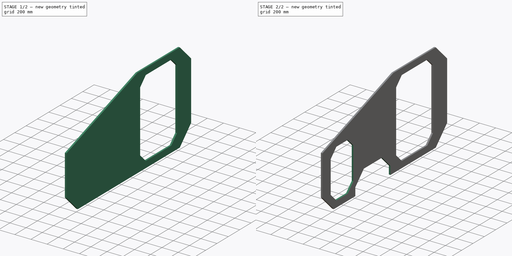
[diagram: build sequence overview — one tinted view per stage of 2, left to right]
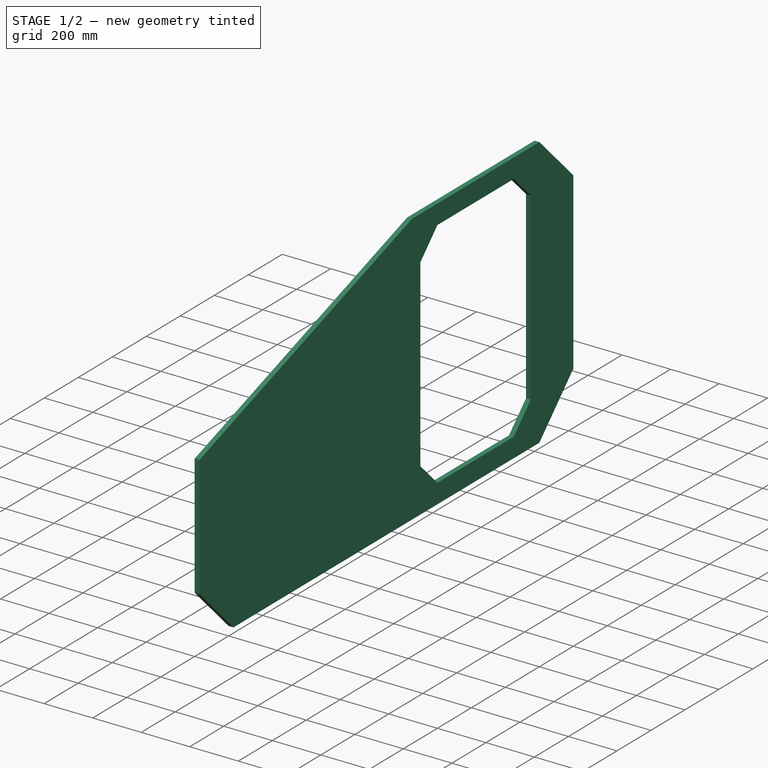
[diagram: stage 1 of 2 — iso view after this stage's code; geometry added in this stage tinted green]
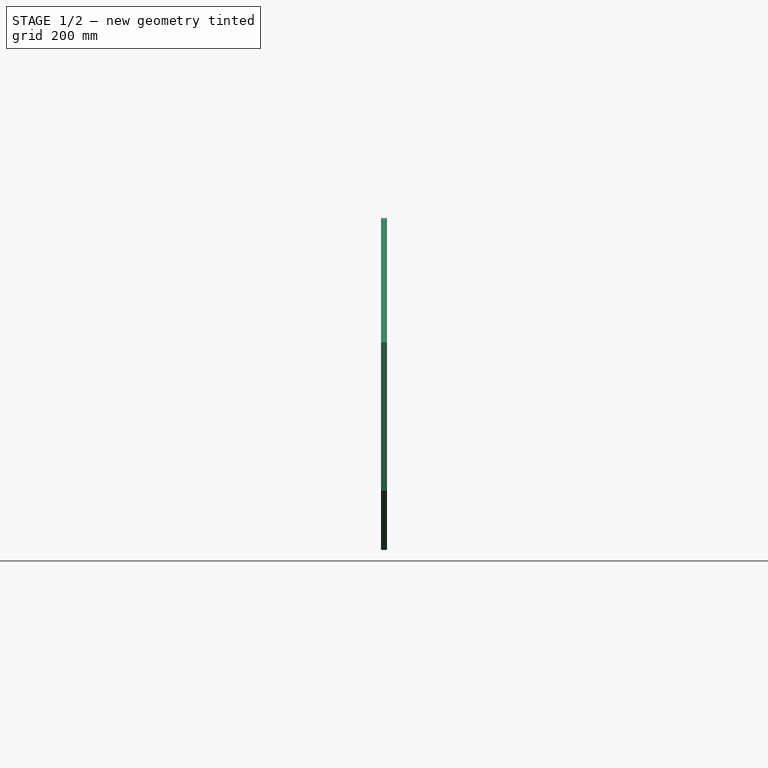
[diagram: stage 1 of 2 — front view after this stage's code; geometry added in this stage tinted green]
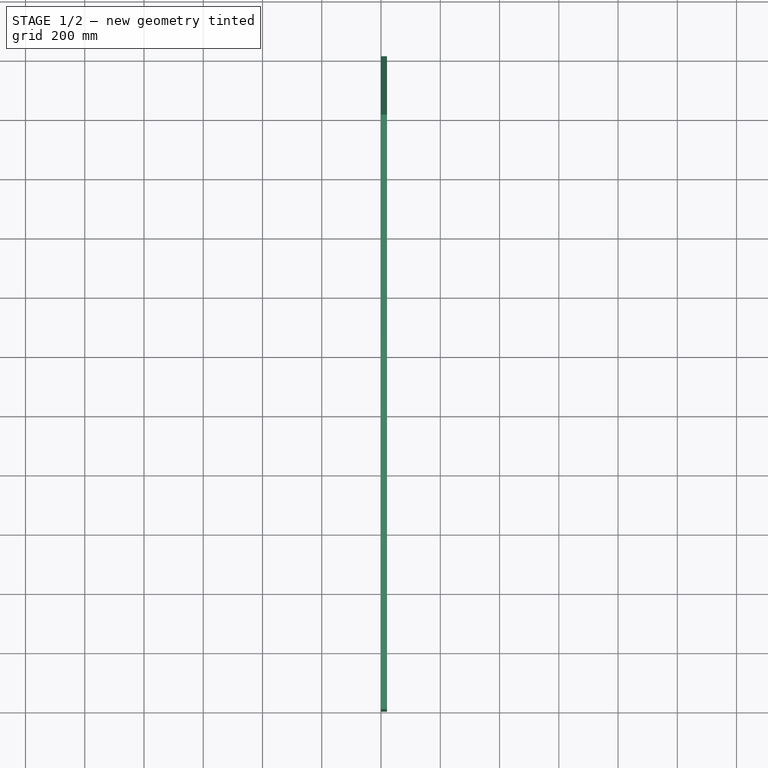
[diagram: stage 1 of 2 — top view after this stage's code; geometry added in this stage tinted green]
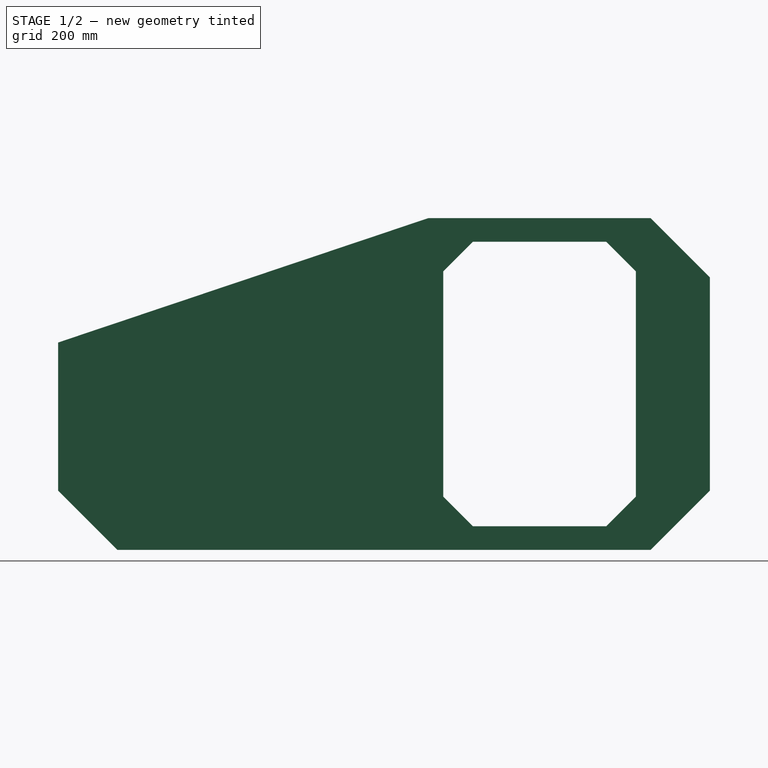
[diagram: stage 1 of 2 — right view after this stage's code; geometry added in this stage tinted green]
FCSTD DOCUMENT  (FreeCAD 0.20R29603 (Git))
Label: SeitenteilLinks
License: All rights reserved
LicenseURL: http://en.wikipedia.org/wiki/All_rights_reserved
objects: Sketcher::SketchObject×4, PartDesign::Pocket×3, PartDesign::Pad×1, PartDesign::Body×1
note: 13 computed .brp shape members not serialized (recipe doc carries the construction recipe); baked Part::Feature solids carry a one-line shape summary decoded from their .brp

FEATURE [Sketcher::SketchObject] Sketch
  FullyConstrained = true
  MapMode = 5
  Placement = pos=(0,0,0) rot=(0.57735,0.57735,0.57735;2.0944rad)
  Support = -> [YZ_Plane]
  sketch-geometry (8):
    g0: LineSegment StartX=-2000 StartY=200 StartZ=0 EndX=-2000 EndY=700 EndZ=0
    g1: LineSegment StartX=-2000 StartY=700 StartZ=0 EndX=-750 EndY=1120 EndZ=0
    g2: LineSegment StartX=-750 StartY=1120 StartZ=0 EndX=0 EndY=1120 EndZ=0
    g3: LineSegment StartX=0 StartY=1120 StartZ=0 EndX=200 EndY=920 EndZ=0
    g4: LineSegment StartX=200 StartY=920 StartZ=0 EndX=200 EndY=200 EndZ=0
    g5: LineSegment StartX=200 StartY=200 StartZ=0 EndX=0 EndY=0 EndZ=0
    g6: LineSegment StartX=0 StartY=0 StartZ=0 EndX=-1800 EndY=0 EndZ=0
    g7: LineSegment StartX=-1800 StartY=0 StartZ=0 EndX=-2000 EndY=200 EndZ=0
  constraints (23):
    c: Vertical(g0)
    c: Coincident(g0,g1)
    c: Coincident(g1,g2)
    c: Horizontal(g2)
    c: Coincident(g2,g3)
    c: Coincident(g3,g4)
    c: Vertical(g4)
    c: Coincident(g4,g5)
    c: Coincident(g5,g6)
    c: PointOnObject(g6,g-1)
    c: Coincident(g6,g7)
    c: Coincident(g7,g0)
    c: Coincident(g5,g-1)
    c: Distance(g5,g6) = 1800
    c: Distance(g5,g2) = 1120
    c: PointOnObject(g2,g-2)
    c: Distance(g5,g4) = 200
    c: Distance(g0,g6) = 700
    c: Distance(g6,g0) = 200
    c: Distance(g4,g6) = 200
    c: Distance(g3,g2) = 200
    c: Distance(g0,g6) = 200
    c: Distance(g1,g4) = 950
FEATURE [PartDesign::Pad] Pad
  Direction = (1,-2e-16,3e-16)
  Length = 20
  Length2 = 10
  Placement = pos=(0,0,0) rot=(0.57735,0.57735,0.57735;2.0944rad)
  Profile = -> Sketch
  ReferenceAxis = -> Sketch [N_Axis]
  Type = 0
FEATURE [Sketcher::SketchObject] Sketch001
  ExternalGeometry = -> [Pad]
  FullyConstrained = true
  MapMode = 5
  Placement = pos=(20,-4.4e-15,4.4e-15) rot=(0.57735,0.57735,0.57735;2.0944rad)
  Support = -> [Pad]
  sketch-geometry (8):
    g0: LineSegment StartX=-600 StartY=1040 StartZ=0 EndX=-150 EndY=1040 EndZ=0
    g1: LineSegment StartX=-150 StartY=1040 StartZ=0 EndX=-50 EndY=940 EndZ=0
    g2: LineSegment StartX=-50 StartY=940 StartZ=0 EndX=-50 EndY=180 EndZ=0
    g3: LineSegment StartX=-50 StartY=180 StartZ=0 EndX=-150 EndY=80 EndZ=0
    g4: LineSegment StartX=-150 StartY=80 StartZ=0 EndX=-600 EndY=80 EndZ=0
    g5: LineSegment StartX=-600 StartY=80 StartZ=0 EndX=-700 EndY=180 EndZ=0
    g6: LineSegment StartX=-700 StartY=180 StartZ=0 EndX=-700 EndY=940 EndZ=0
    g7: LineSegment StartX=-700 StartY=940 StartZ=0 EndX=-600 EndY=1040 EndZ=0
  constraints (24):
    c: Horizontal(g0)
    c: Coincident(g0,g1)
    c: Coincident(g1,g2)
    c: Vertical(g2)
    c: Coincident(g2,g3)
    c: Coincident(g3,g4)
    c: Horizontal(g4)
    c: Coincident(g4,g5)
    c: Coincident(g5,g6)
    c: Vertical(g6)
    c: Coincident(g6,g7)
    c: Coincident(g7,g0)
    c: Distance(g3,g-3) = 80
    c: Distance(g0,g-5) = 80
    c: Distance(g1,g0) = 100
    c: Distance(g2,g4) = 100
    c: Parallel(g5,g1)
    c: Parallel(g7,g3)
    c: Distance(g3,g2) = 100
    c: Distance(g0,g2) = 100
    c: Equal(g1,g7)
    c: Equal(g3,g5)
    c: Distance(g6,g2) = 650
    c: Distance(g5,g-4) = 900
FEATURE [PartDesign::Pocket] Pocket
  BaseFeature = -> Pad
  Direction = (-1,4e-16,-4e-16)
  Length = 20
  Length2 = 5
  Placement = pos=(0,0,0) rot=(0.57735,0.57735,0.57735;2.0944rad)
  Profile = -> Sketch001
  ReferenceAxis = -> Sketch001 [N_Axis]
  Type = 0
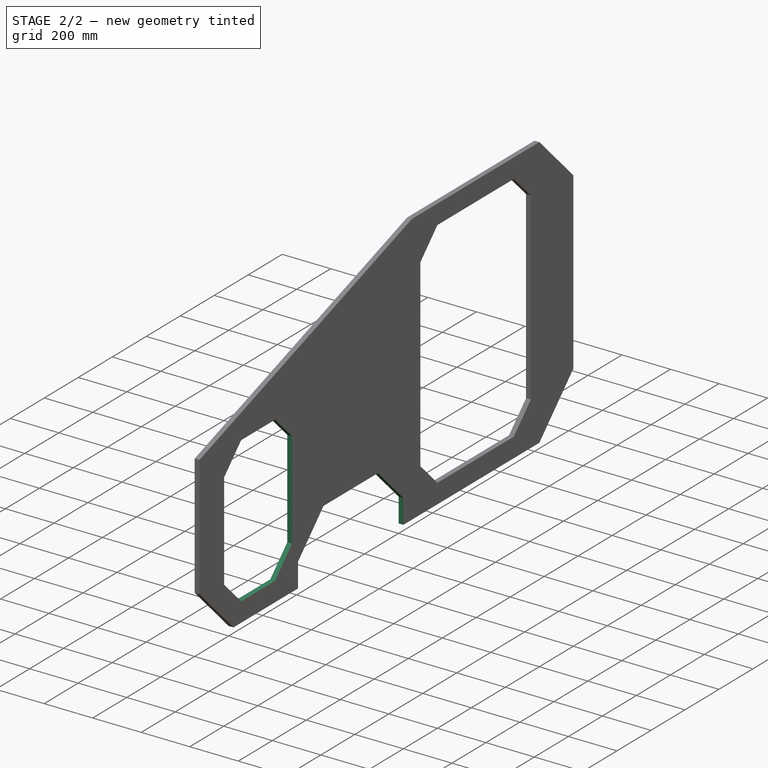
[diagram: stage 2 of 2 — iso view after this stage's code; geometry added in this stage tinted green]
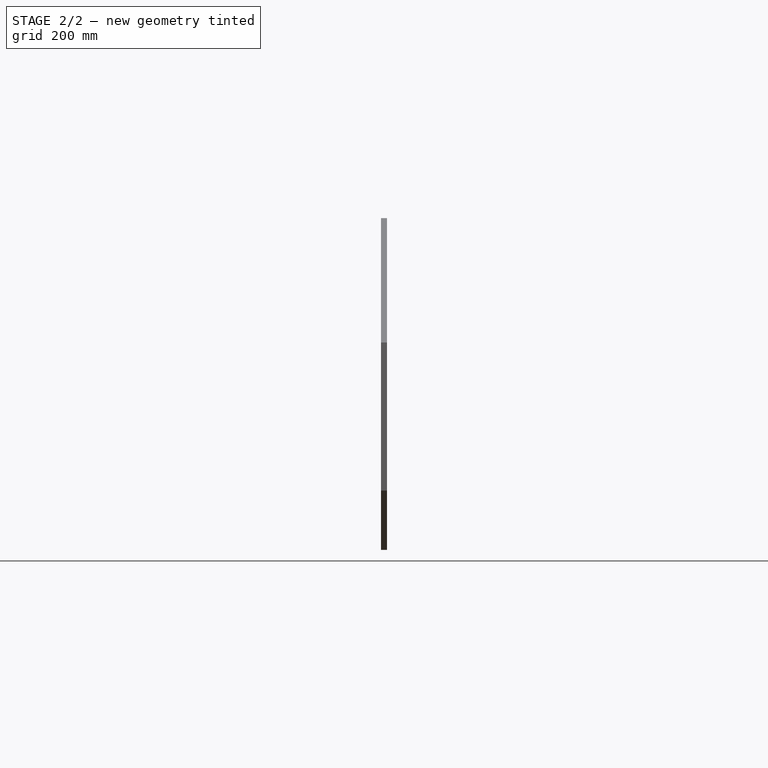
[diagram: stage 2 of 2 — front view after this stage's code; geometry added in this stage tinted green]
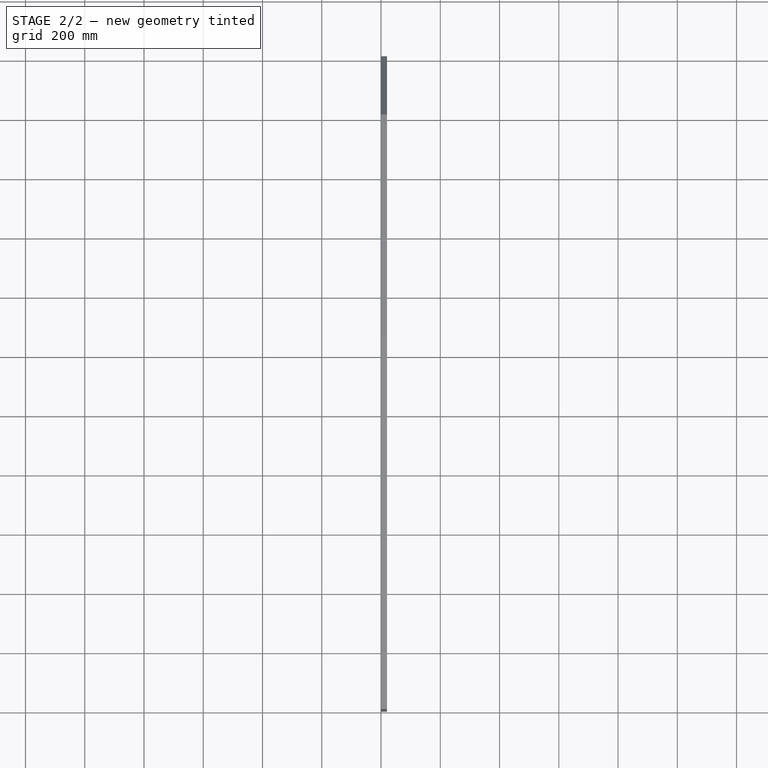
[diagram: stage 2 of 2 — top view after this stage's code; geometry added in this stage tinted green]
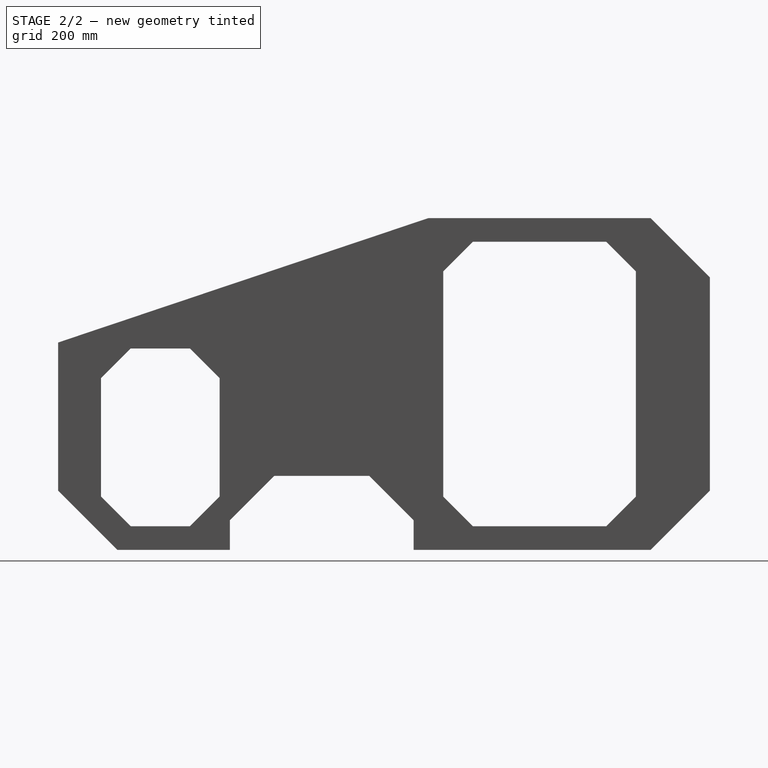
[diagram: stage 2 of 2 — right view after this stage's code; geometry added in this stage tinted green]
FEATURE [Sketcher::SketchObject] Sketch002
  ExternalGeometry = -> [Pocket]
  FullyConstrained = true
  MapMode = 5
  Placement = pos=(20,-4.4e-15,4.4e-15) rot=(0.57735,0.57735,0.57735;2.0944rad)
  Support = -> [Pocket]
  sketch-geometry (6):
    g0: LineSegment StartX=-1270 StartY=250 StartZ=0 EndX=-950 EndY=250 EndZ=0
    g1: LineSegment StartX=-800 StartY=6.253e-13 StartZ=0 EndX=-1420 EndY=1.1047e-12 EndZ=0
    g2: LineSegment StartX=-1420 StartY=1.1047e-12 StartZ=0 EndX=-1420 EndY=100 EndZ=0
    g3: LineSegment StartX=-1420 StartY=100 StartZ=0 EndX=-1270 EndY=250 EndZ=0
    g4: LineSegment StartX=-950 StartY=250 StartZ=0 EndX=-800 EndY=100 EndZ=0
    g5: LineSegment StartX=-800 StartY=100 StartZ=0 EndX=-800 EndY=6.253e-13 EndZ=0
  constraints (18):
    c: PointOnObject(g1,g-3)
    c: Horizontal(g0)
    c: PointOnObject(g1,g-3)
    c: Distance(g1,g1) = 620
    c: Distance(g1,g-5) = 1000
    c: Coincident(g1,g2)
    c: Vertical(g2)
    c: Coincident(g2,g3)
    c: Coincident(g3,g0)
    c: Coincident(g0,g4)
    c: Coincident(g4,g5)
    c: Coincident(g5,g1)
    c: Equal(g5,g2)
    c: Parallel(g5,g2)
    c: Angle(g4,g5) = 2.35619
    c: Distance(g2) = 100
    c: Equal(g4,g3)
    c: Distance(g0,g-3) = 250
FEATURE [PartDesign::Pocket] Pocket001
  BaseFeature = -> Pocket
  Direction = (-1,9e-16,-6e-16)
  Length = 20
  Length2 = 5
  Placement = pos=(0,0,0) rot=(0.57735,0.57735,0.57735;2.0944rad)
  Profile = -> Sketch002
  ReferenceAxis = -> Sketch002 [N_Axis]
  Type = 0
FEATURE [Sketcher::SketchObject] Sketch003
  ExternalGeometry = -> [Pocket001]
  FullyConstrained = true
  MapMode = 5
  Placement = pos=(20,-4.4e-15,4.4e-15) rot=(0.57735,0.57735,0.57735;2.0944rad)
  Support = -> [Pocket001]
  sketch-geometry (8):
    g0: LineSegment StartX=-1755 StartY=80 StartZ=0 EndX=-1555 EndY=80 EndZ=0
    g1: LineSegment StartX=-1555 StartY=80 StartZ=0 EndX=-1455 EndY=180 EndZ=0
    g2: LineSegment StartX=-1455 StartY=180 StartZ=0 EndX=-1455 EndY=580 EndZ=0
    g3: LineSegment StartX=-1455 StartY=580 StartZ=0 EndX=-1555 EndY=680 EndZ=0
    g4: LineSegment StartX=-1555 StartY=680 StartZ=0 EndX=-1755 EndY=680 EndZ=0
    g5: LineSegment StartX=-1755 StartY=680 StartZ=0 EndX=-1855 EndY=580 EndZ=0
    g6: LineSegment StartX=-1855 StartY=580 StartZ=0 EndX=-1855 EndY=180 EndZ=0
    g7: LineSegment StartX=-1855 StartY=180 StartZ=0 EndX=-1755 EndY=80 EndZ=0
  constraints (24):
    c: Coincident(g0,g1)
    c: Coincident(g1,g2)
    c: Vertical(g2)
    c: Coincident(g2,g3)
    c: Coincident(g3,g4)
    c: Horizontal(g4)
    c: Coincident(g4,g5)
    c: Coincident(g5,g6)
    c: Vertical(g6)
    c: Coincident(g6,g7)
    c: Coincident(g7,g0)
    c: Equal(g6,g2)
    c: Equal(g4,g0)
    c: Distance(g2,g4) = 100
    c: Distance(g3,g2) = 100
    c: Parallel(g0,g-4)
    c: Distance(g0,g2) = 100
    c: Distance(g1,g0) = 100
    c: Equal(g1,g7)
    c: Equal(g3,g5)
    c: Distance(g0,g-4) = 80
    c: Distance(g0,g4) = 600
    c: Distance(g5,g2) = 400
    c: Distance(g6,g-7) = 145
FEATURE [PartDesign::Pocket] Pocket002
  BaseFeature = -> Pocket001
  Direction = (-1,2e-16,-2e-16)
  Length = 20
  Length2 = 5
  Placement = pos=(0,0,0) rot=(0.57735,0.57735,0.57735;2.0944rad)
  Profile = -> Sketch003
  ReferenceAxis = -> Sketch003 [N_Axis]
  Type = 0
FEATURE [PartDesign::Body] Body
  Group = -> [Sketch,Pad,Sketch001,Pocket,Sketch002,Pocket001,Sketch003,Pocket002]
  Origin = -> Origin
  Tip = -> Pocket002
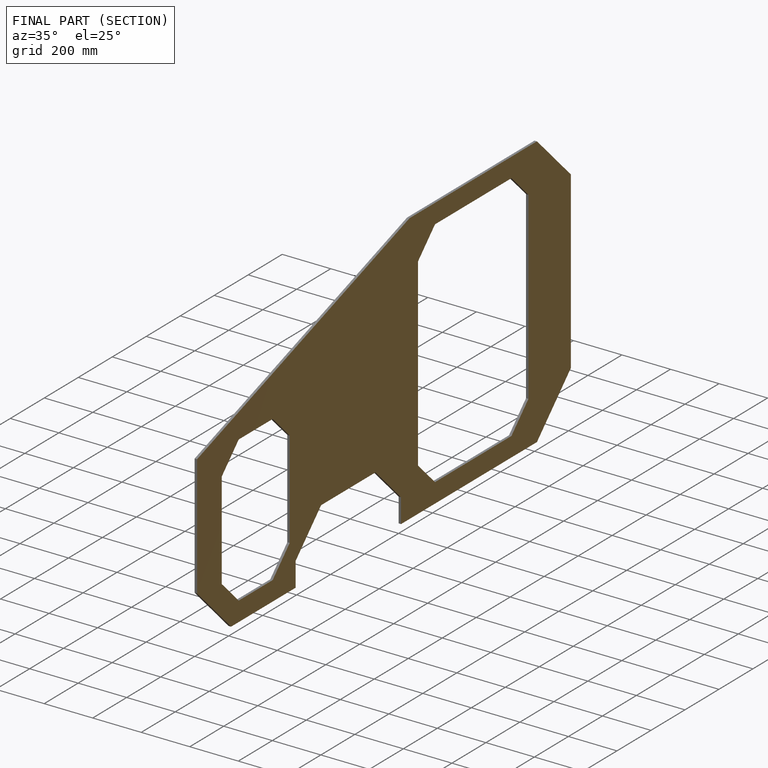
[diagram: finished part — half-section view (interior)]
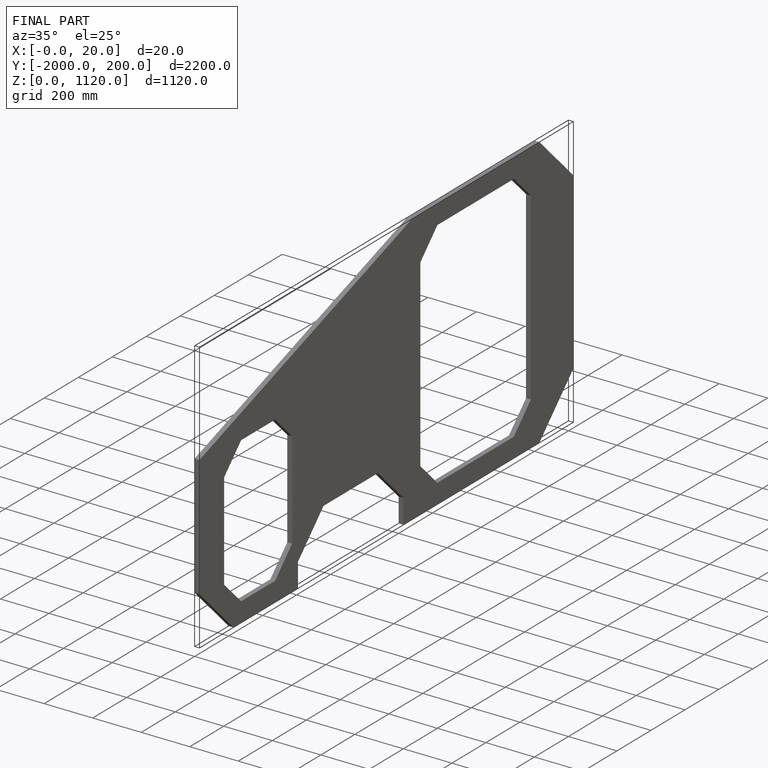
[diagram: finished part — iso view with bounding-box wireframe]
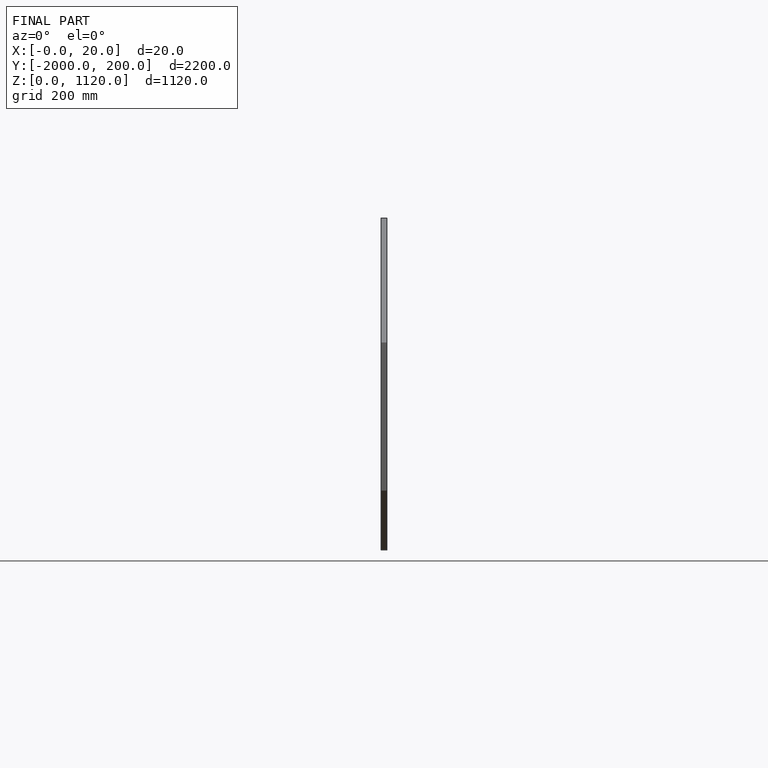
[diagram: finished part — front view with bounding-box wireframe]
